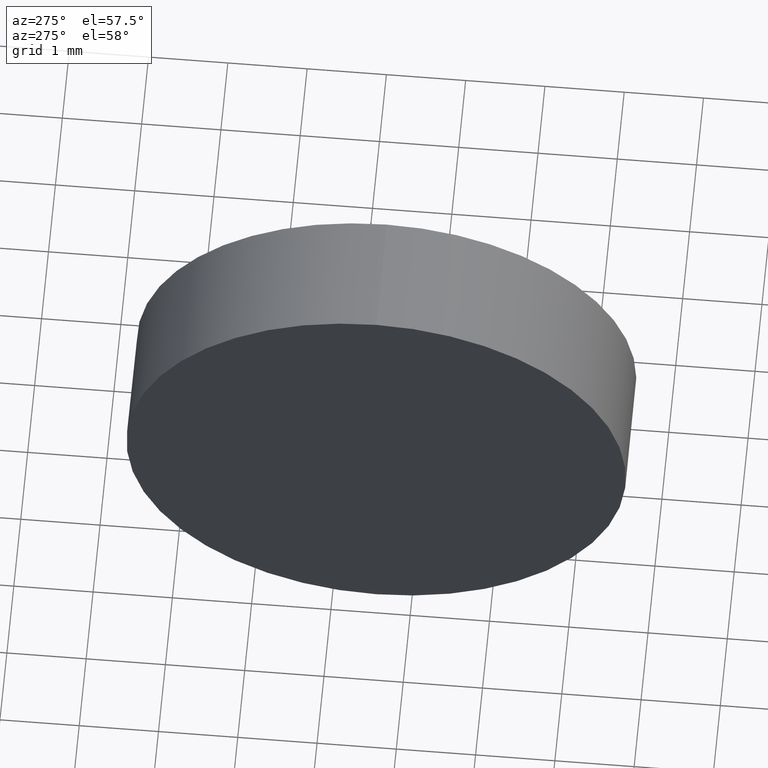
[diagram: clean part render]
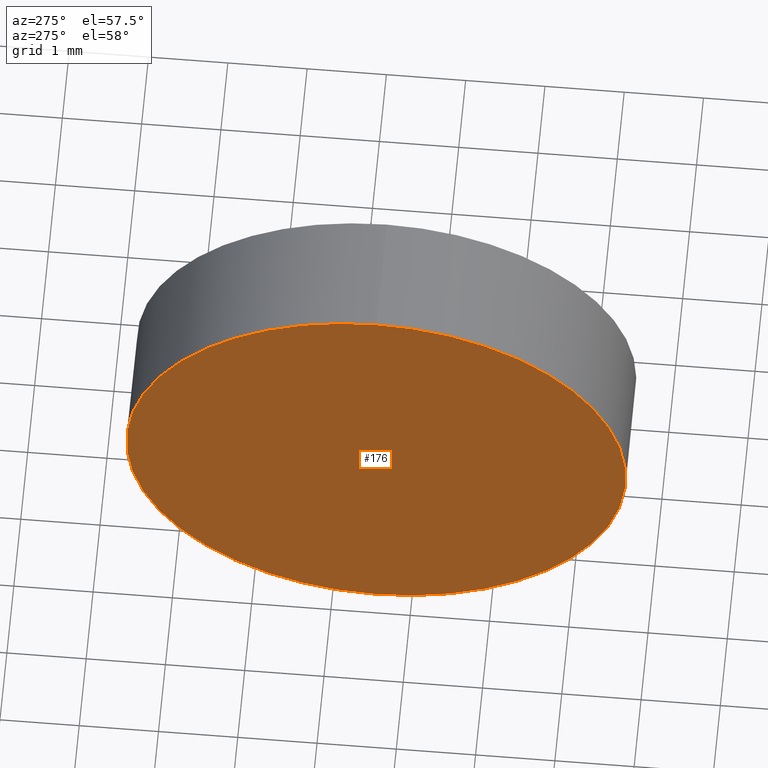
[diagram: same view with one face highlighted and labeled with its STEP entity id]
A machine part, auxiliary view. The second image highlights one B-rep face of the part: STEP entity #176.
In plain terms, the highlighted planar face has unit normal (1, 0, 0).
Its self-contained STEP definition (entity closure, byte-faithful):
#10 = DIRECTION ( 'NONE',  ( 1.000000000000000000, 0.0000000000000000000, 0.0000000000000000000 ) ) ;
#24 = CARTESIAN_POINT ( 'NONE',  ( 401.1884556923478700, 12.44565855584187600, 0.0000000000000000000 ) ) ;
#31 = PLANE ( 'NONE',  #175 ) ;
#42 = CARTESIAN_POINT ( 'NONE',  ( 401.1884556923478700, 12.44565855584187600, 3.149999999999999900 ) ) ;
#43 = DIRECTION ( 'NONE',  ( -1.000000000000000000, -0.0000000000000000000, -0.0000000000000000000 ) ) ;
#53 = DIRECTION ( 'NONE',  ( -1.000000000000000000, -0.0000000000000000000, -0.0000000000000000000 ) ) ;
#58 = AXIS2_PLACEMENT_3D ( 'NONE', #24, #53, #75 ) ;
#75 = DIRECTION ( 'NONE',  ( 0.0000000000000000000, 0.0000000000000000000, 1.000000000000000000 ) ) ;
#78 = ORIENTED_EDGE ( 'NONE', *, *, #173, .T. ) ;
#81 = DIRECTION ( 'NONE',  ( 0.0000000000000000000, 0.0000000000000000000, -1.000000000000000000 ) ) ;
#86 = EDGE_CURVE ( 'NONE', #123, #167, #155, .T. ) ;
#89 = CIRCLE ( 'NONE', #171, 3.149999999999999900 ) ;
#123 = VERTEX_POINT ( 'NONE', #42 ) ;
#127 = CARTESIAN_POINT ( 'NONE',  ( 401.1884556923478700, 12.44565855584187600, -3.149999999999999900 ) ) ;
#142 = DIRECTION ( 'NONE',  ( 0.0000000000000000000, 0.0000000000000000000, 1.000000000000000000 ) ) ;
#155 = CIRCLE ( 'NONE', #58, 3.149999999999999900 ) ;
#162 = EDGE_LOOP ( 'NONE', ( #163, #78 ) ) ;
#163 = ORIENTED_EDGE ( 'NONE', *, *, #86, .T. ) ;
#167 = VERTEX_POINT ( 'NONE', #127 ) ;
#170 = CARTESIAN_POINT ( 'NONE',  ( 401.1884556923478700, 12.44565855584187600, 0.0000000000000000000 ) ) ;
#171 = AXIS2_PLACEMENT_3D ( 'NONE', #170, #43, #142 ) ;
#172 = FACE_OUTER_BOUND ( 'NONE', #162, .T. ) ;
#173 = EDGE_CURVE ( 'NONE', #167, #123, #89, .T. ) ;
#175 = AXIS2_PLACEMENT_3D ( 'NONE', #182, #10, #81 ) ;
#176 = ADVANCED_FACE ( 'NONE', ( #172 ), #31, .F. ) ;
#182 = CARTESIAN_POINT ( 'NONE',  ( 401.1884556923478700, 12.44565855584187600, 0.0000000000000000000 ) ) ;